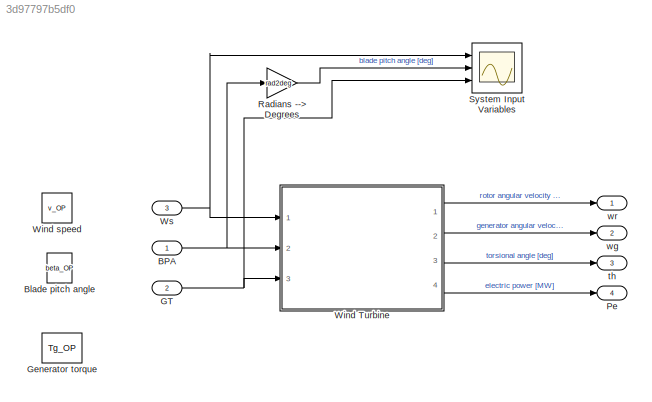
MODEL slx_3d97797b5df0
KIND model
CONFIG AbsTol = auto
CONFIG EnableMultiTasking = off
CONFIG FixedStep = STEP_SIZE
CONFIG MaxStep = Ts
CONFIG MinStep = auto
CONFIG RelTol = 1e-6
CONFIG SampleTimeConstraint = Unconstrained
CONFIG SolverName = ode4
CONFIG StartTime = 0.0
CONFIG StopTime = TIME_SIM
BLOCK [Inport] BPA
BLOCK [Constant] Blade pitch angle
  Commented = on
  Value = beta_OP
BLOCK [Inport] GT
  Port = 2
BLOCK [Constant] Generator torque
  Commented = on
  Value = Tg_OP
BLOCK [Outport] Pe
  Port = 4
BLOCK [Gain] Radians --> Degrees
  Gain = rad2deg
BLOCK [Scope] System Input Variables
  Floating = off
  NumInputPorts = 3
  Ports = [3]
  ScopeSpecificationString = C++SS(StrPVP('Location','[1, 48, 1921, 1159]'),StrPVP('Open','off'),MxPVP('AxesTitles',54,'struct(''axes1'',''%<SignalLabel>'',''axes2'',''%<SignalLabel>'',''axes3'',''%<SignalLabel>'')'),MxPVP('ScopeGraphics',57,'struct(''FigureColor'',''[0.933333333333333 0.933333333333333 0.933333333333333]'',''AxesColor'',''[1 1 1]'',''AxesTickColor'',''[0 0 0]'',''LineColors'',''[0 0 1;1 0 1;0 1 1;1 0 0;0 1 0...<+385ch>
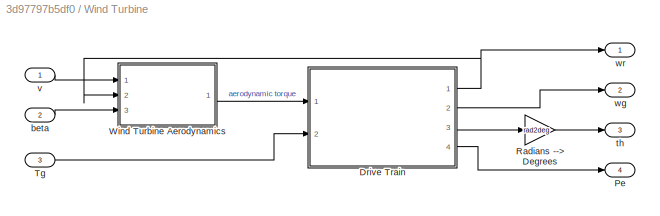
BLOCK [SubSystem] Wind Turbine
  Ports = [3, 4]
  RequestExecContextInheritance = off
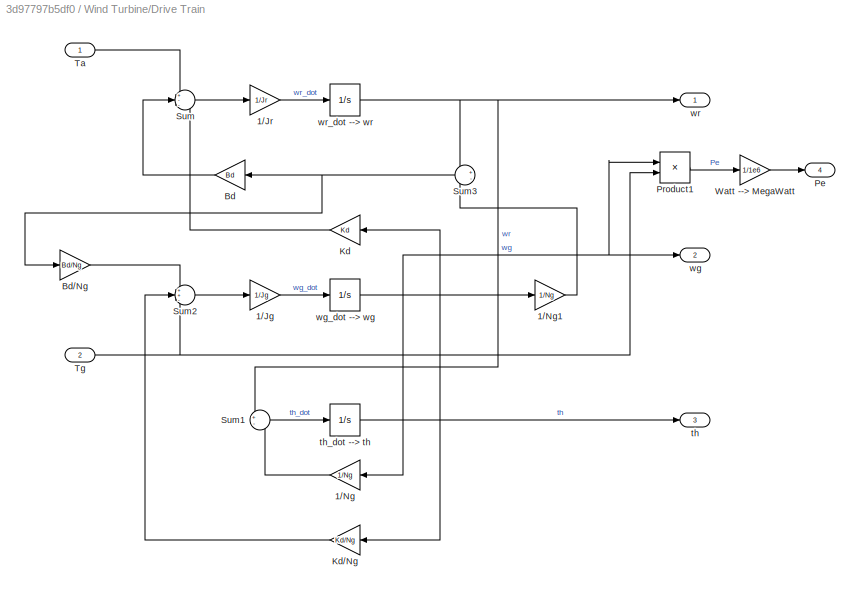
BLOCK [SubSystem] Wind Turbine/Drive Train
  Ports = [2, 4]
  RequestExecContextInheritance = off
BLOCK [Gain] Wind Turbine/Drive Train/1//Jg
  Gain = 1/Jg
BLOCK [Gain] Wind Turbine/Drive Train/1//Jr
  Gain = 1/Jr
BLOCK [Gain] Wind Turbine/Drive Train/1//Ng
  Gain = 1/Ng
BLOCK [Gain] Wind Turbine/Drive Train/1//Ng1
  Gain = 1/Ng
BLOCK [Gain] Wind Turbine/Drive Train/Bd
  Gain = Bd
BLOCK [Gain] Wind Turbine/Drive Train/Bd//Ng
  Gain = Bd/Ng
BLOCK [Gain] Wind Turbine/Drive Train/Kd
  Gain = Kd
BLOCK [Gain] Wind Turbine/Drive Train/Kd//Ng
  Gain = Kd/Ng
BLOCK [Outport] Wind Turbine/Drive Train/Pe
  Port = 4
  VectorParamsAs1DForOutWhenUnconnected = off
BLOCK [Product] Wind Turbine/Drive Train/Product1
  Ports = [2, 1]
BLOCK [Sum] Wind Turbine/Drive Train/Sum
  Inputs = +--
  Ports = [3, 1]
BLOCK [Sum] Wind Turbine/Drive Train/Sum1
  Inputs = +-
  Ports = [2, 1]
BLOCK [Sum] Wind Turbine/Drive Train/Sum2
  Inputs = ++-
  Ports = [3, 1]
BLOCK [Sum] Wind Turbine/Drive Train/Sum3
  Inputs = +-
  Ports = [2, 1]
BLOCK [Inport] Wind Turbine/Drive Train/Ta
BLOCK [Inport] Wind Turbine/Drive Train/Tg
  Port = 2
BLOCK [Gain] Wind Turbine/Drive Train/Watt --> MegaWatt
  Gain = 1/1e6
BLOCK [Outport] Wind Turbine/Drive Train/th
  Port = 3
  VectorParamsAs1DForOutWhenUnconnected = off
BLOCK [Integrator] Wind Turbine/Drive Train/th_dot --> th
  InitialCondition = x0(3)
  LowerSaturationLimit = 0
  Ports = [1, 1]
  Priority = 3
BLOCK [Outport] Wind Turbine/Drive Train/wg
  Port = 2
  VectorParamsAs1DForOutWhenUnconnected = off
BLOCK [Integrator] Wind Turbine/Drive Train/wg_dot --> wg
  InitialCondition = x0(2)
  LowerSaturationLimit = 0
  Ports = [1, 1]
  Priority = 2
BLOCK [Outport] Wind Turbine/Drive Train/wr
  VectorParamsAs1DForOutWhenUnconnected = off
BLOCK [Integrator] Wind Turbine/Drive Train/wr_dot --> wr
  InitialCondition = x0(1)
  LowerSaturationLimit = 0
  Ports = [1, 1]
  Priority = 1
BLOCK [Outport] Wind Turbine/Pe
  Port = 4
  VectorParamsAs1DForOutWhenUnconnected = off
BLOCK [Gain] Wind Turbine/Radians --> Degrees
  Gain = rad2deg
BLOCK [Inport] Wind Turbine/Tg
  Port = 3
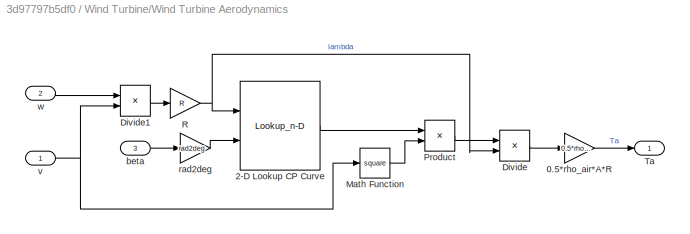
BLOCK [SubSystem] Wind Turbine/Wind Turbine Aerodynamics
  Ports = [3, 1]
  RequestExecContextInheritance = off
BLOCK [Gain] Wind Turbine/Wind Turbine Aerodynamics/0.5*rho_air*A*R
  Gain = 0.5*rho_air*A*R
BLOCK [Lookup_n-D] Wind Turbine/Wind Turbine Aerodynamics/2-D Lookup CP Curve
  BreakpointsForDimension1 = Lambda0
  BreakpointsForDimension2 = Pitch0
  BreakpointsForDimension3 = CP0'
  DiagnosticForOutOfRangeInput = Warning
  InputPortMap = u0,u1
  Ports = [2, 1]
  RndMeth = Simplest
  Table = CP0
BLOCK [Product] Wind Turbine/Wind Turbine Aerodynamics/Divide
  Inputs = */
  Ports = [2, 1]
BLOCK [Product] Wind Turbine/Wind Turbine Aerodynamics/Divide1
  Inputs = */
  Ports = [2, 1]
BLOCK [Math] Wind Turbine/Wind Turbine Aerodynamics/Math Function
  Operator = square
  Ports = [1, 1]
  SignedPower = on
BLOCK [Product] Wind Turbine/Wind Turbine Aerodynamics/Product
  Ports = [2, 1]
BLOCK [Gain] Wind Turbine/Wind Turbine Aerodynamics/R
  Gain = R
BLOCK [Outport] Wind Turbine/Wind Turbine Aerodynamics/Ta
  VectorParamsAs1DForOutWhenUnconnected = off
BLOCK [Inport] Wind Turbine/Wind Turbine Aerodynamics/beta
  Port = 3
BLOCK [Gain] Wind Turbine/Wind Turbine Aerodynamics/rad2deg
  Gain = rad2deg
BLOCK [Inport] Wind Turbine/Wind Turbine Aerodynamics/v
BLOCK [Inport] Wind Turbine/Wind Turbine Aerodynamics/w
  Port = 2
BLOCK [Inport] Wind Turbine/beta
  Port = 2
BLOCK [Outport] Wind Turbine/th
  Port = 3
  VectorParamsAs1DForOutWhenUnconnected = off
BLOCK [Inport] Wind Turbine/v
BLOCK [Outport] Wind Turbine/wg
  Port = 2
  VectorParamsAs1DForOutWhenUnconnected = off
BLOCK [Outport] Wind Turbine/wr
  VectorParamsAs1DForOutWhenUnconnected = off
BLOCK [Constant] Wind speed
  Commented = on
  Value = v_OP
BLOCK [Inport] Ws
  Port = 3
BLOCK [Outport] th
  Port = 3
BLOCK [Outport] wg
  Port = 2
BLOCK [Outport] wr
NET BPA:1 -> Radians --> Degrees:1, Wind Turbine:2
NET GT:1 -> System Input Variables:3, Wind Turbine:3
LINE Radians --> Degrees:1 -> System Input Variables:2
LINE Wind Turbine/Drive Train/1//Jg:1 -> Wind Turbine/Drive Train/wg_dot --> wg:1
LINE Wind Turbine/Drive Train/1//Jr:1 -> Wind Turbine/Drive Train/wr_dot --> wr:1
LINE Wind Turbine/Drive Train/1//Ng1:1 -> Wind Turbine/Drive Train/Sum3:2
LINE Wind Turbine/Drive Train/1//Ng:1 -> Wind Turbine/Drive Train/Sum1:2
LINE Wind Turbine/Drive Train/Bd//Ng:1 -> Wind Turbine/Drive Train/Sum2:1
LINE Wind Turbine/Drive Train/Bd:1 -> Wind Turbine/Drive Train/Sum:2
LINE Wind Turbine/Drive Train/Kd//Ng:1 -> Wind Turbine/Drive Train/Sum2:2
LINE Wind Turbine/Drive Train/Kd:1 -> Wind Turbine/Drive Train/Sum:3
LINE Wind Turbine/Drive Train/Product1:1 -> Wind Turbine/Drive Train/Watt --> MegaWatt:1
LINE Wind Turbine/Drive Train/Sum1:1 -> Wind Turbine/Drive Train/th_dot --> th:1
LINE Wind Turbine/Drive Train/Sum2:1 -> Wind Turbine/Drive Train/1//Jg:1
NET Wind Turbine/Drive Train/Sum3:1 -> Wind Turbine/Drive Train/Bd//Ng:1, Wind Turbine/Drive Train/Bd:1
LINE Wind Turbine/Drive Train/Sum:1 -> Wind Turbine/Drive Train/1//Jr:1
LINE Wind Turbine/Drive Train/Ta:1 -> Wind Turbine/Drive Train/Sum:1
NET Wind Turbine/Drive Train/Tg:1 -> Wind Turbine/Drive Train/Product1:2, Wind Turbine/Drive Train/Sum2:3
LINE Wind Turbine/Drive Train/Watt --> MegaWatt:1 -> Wind Turbine/Drive Train/Pe:1
NET Wind Turbine/Drive Train/th_dot --> th:1 -> Wind Turbine/Drive Train/Kd//Ng:1, Wind Turbine/Drive Train/Kd:1, Wind Turbine/Drive Train/th:1
NET Wind Turbine/Drive Train/wg_dot --> wg:1 -> Wind Turbine/Drive Train/1//Ng1:1, Wind Turbine/Drive Train/1//Ng:1, Wind Turbine/Drive Train/Product1:1, Wind Turbine/Drive Train/wg:1
NET Wind Turbine/Drive Train/wr_dot --> wr:1 -> Wind Turbine/Drive Train/Sum1:1, Wind Turbine/Drive Train/Sum3:1, Wind Turbine/Drive Train/wr:1
NET Wind Turbine/Drive Train:1 -> Wind Turbine/Wind Turbine Aerodynamics:2, Wind Turbine/wr:1
LINE Wind Turbine/Drive Train:2 -> Wind Turbine/wg:1
LINE Wind Turbine/Drive Train:3 -> Wind Turbine/Radians --> Degrees:1
LINE Wind Turbine/Drive Train:4 -> Wind Turbine/Pe:1
LINE Wind Turbine/Radians --> Degrees:1 -> Wind Turbine/th:1
LINE Wind Turbine/Tg:1 -> Wind Turbine/Drive Train:2
LINE Wind Turbine/Wind Turbine Aerodynamics/0.5*rho_air*A*R:1 -> Wind Turbine/Wind Turbine Aerodynamics/Ta:1
LINE Wind Turbine/Wind Turbine Aerodynamics/2-D Lookup CP Curve:1 -> Wind Turbine/Wind Turbine Aerodynamics/Product:1
LINE Wind Turbine/Wind Turbine Aerodynamics/Divide1:1 -> Wind Turbine/Wind Turbine Aerodynamics/R:1
LINE Wind Turbine/Wind Turbine Aerodynamics/Divide:1 -> Wind Turbine/Wind Turbine Aerodynamics/0.5*rho_air*A*R:1
LINE Wind Turbine/Wind Turbine Aerodynamics/Math Function:1 -> Wind Turbine/Wind Turbine Aerodynamics/Product:2
LINE Wind Turbine/Wind Turbine Aerodynamics/Product:1 -> Wind Turbine/Wind Turbine Aerodynamics/Divide:1
NET Wind Turbine/Wind Turbine Aerodynamics/R:1 -> Wind Turbine/Wind Turbine Aerodynamics/2-D Lookup CP Curve:1, Wind Turbine/Wind Turbine Aerodynamics/Divide:2
LINE Wind Turbine/Wind Turbine Aerodynamics/beta:1 -> Wind Turbine/Wind Turbine Aerodynamics/rad2deg:1
LINE Wind Turbine/Wind Turbine Aerodynamics/rad2deg:1 -> Wind Turbine/Wind Turbine Aerodynamics/2-D Lookup CP Curve:2
NET Wind Turbine/Wind Turbine Aerodynamics/v:1 -> Wind Turbine/Wind Turbine Aerodynamics/Divide1:2, Wind Turbine/Wind Turbine Aerodynamics/Math Function:1
LINE Wind Turbine/Wind Turbine Aerodynamics/w:1 -> Wind Turbine/Wind Turbine Aerodynamics/Divide1:1
LINE Wind Turbine/Wind Turbine Aerodynamics:1 -> Wind Turbine/Drive Train:1
LINE Wind Turbine/beta:1 -> Wind Turbine/Wind Turbine Aerodynamics:3
LINE Wind Turbine/v:1 -> Wind Turbine/Wind Turbine Aerodynamics:1
LINE Wind Turbine:1 -> wr:1
LINE Wind Turbine:2 -> wg:1
LINE Wind Turbine:3 -> th:1
LINE Wind Turbine:4 -> Pe:1
NET Ws:1 -> System Input Variables:1, Wind Turbine:1
note: NET lines group one-source signal fan-out (src -> all destinations, sorted); 1:1 wires keep LINE
